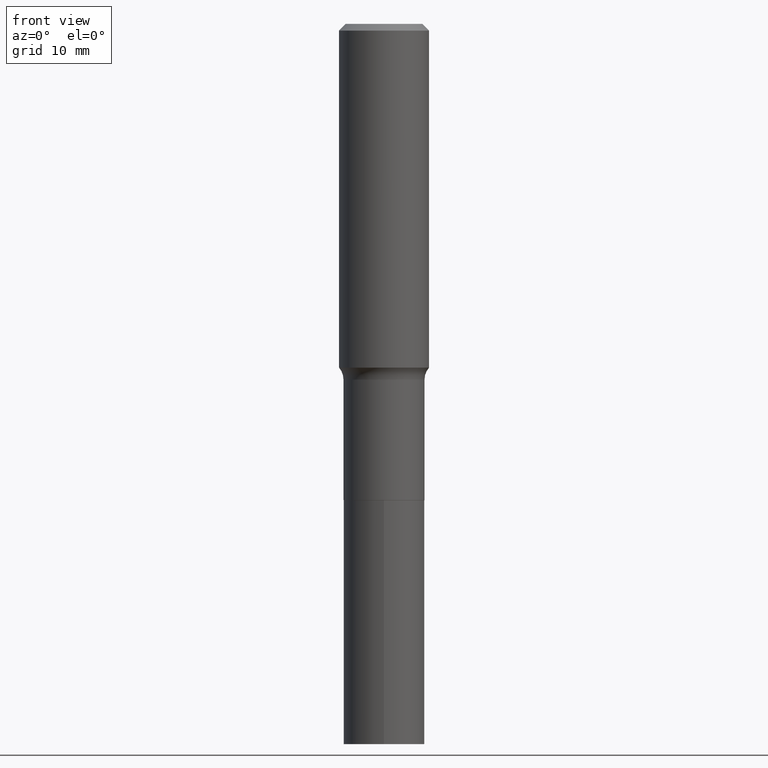
[diagram: clean part render]
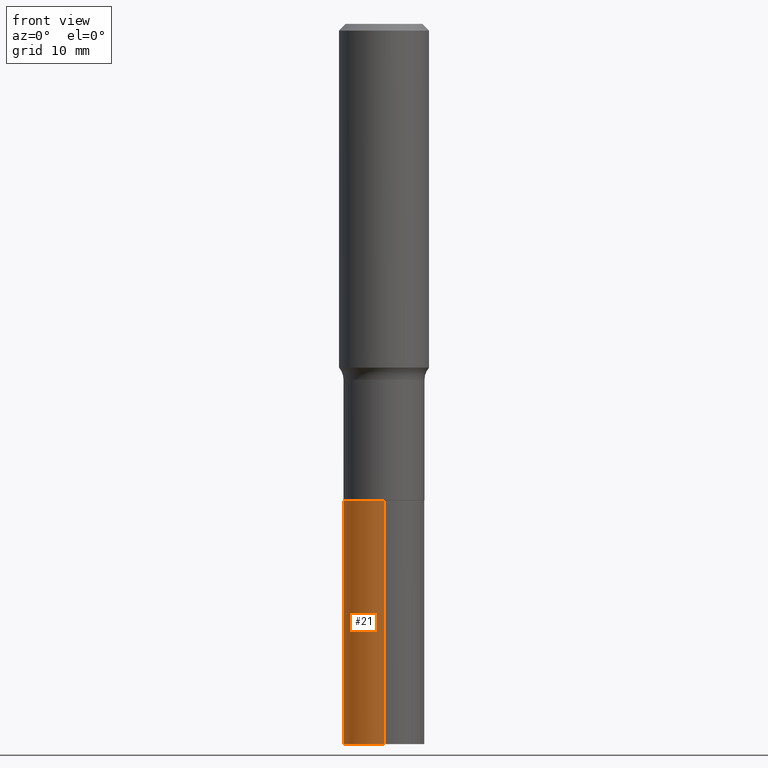
[diagram: same view with one face highlighted and labeled with its STEP entity id]
A machine part, front view. The second image highlights one B-rep face of the part: STEP entity #21.
In plain terms, the highlighted cylindrical surface (partial cylindrical patch) has radius 4.4996 mm, axis along (-0, 0, 1).
Its self-contained STEP definition (entity closure, byte-faithful):
#2 = DIRECTION ( 'NONE',  ( -2.445982101368739272E-29, 3.490746270925279070E-15, 1.000000000000000000 ) ) ;
#21 = ADVANCED_FACE ( 'NONE', ( #316 ), #179, .T. ) ;
#22 = CARTESIAN_POINT ( 'NONE',  ( 7.702796237921611496E-29, -1.099598530735201076E-14, -3.149600000000000843 ) ) ;
#23 = VERTEX_POINT ( 'NONE', #125 ) ;
#27 = AXIS2_PLACEMENT_3D ( 'NONE', #135, #454, #238 ) ;
#32 = EDGE_CURVE ( 'NONE', #459, #183, #84, .T. ) ;
#61 = EDGE_CURVE ( 'NONE', #234, #23, #129, .T. ) ;
#76 = VECTOR ( 'NONE', #184, 39.37007874015748143 ) ;
#84 = CIRCLE ( 'NONE', #309, 0.1771500000000000019 ) ;
#88 = DIRECTION ( 'NONE',  ( -2.445982101368739552E-29, 3.490746270925278675E-15, 1.000000000000000000 ) ) ;
#93 = EDGE_LOOP ( 'NONE', ( #441, #244, #176, #366 ) ) ;
#125 = CARTESIAN_POINT ( 'NONE',  ( -1.237031838352045086E-15, -0.1771500000000110209, -3.149600000000000399 ) ) ;
#129 = CIRCLE ( 'NONE', #196, 0.1771500000000000019 ) ;
#135 = CARTESIAN_POINT ( 'NONE',  ( 5.092933335761166106E-29, -7.271359036274735388E-15, -2.082600000000000229 ) ) ;
#171 = EDGE_CURVE ( 'NONE', #234, #459, #389, .T. ) ;
#176 = ORIENTED_EDGE ( 'NONE', *, *, #301, .T. ) ;
#179 = CYLINDRICAL_SURFACE ( 'NONE', #27, 0.1771500000000000019 ) ;
#180 = DIRECTION ( 'NONE',  ( -2.445982101368739552E-29, 3.490746270925278675E-15, 1.000000000000000000 ) ) ;
#183 = VERTEX_POINT ( 'NONE', #432 ) ;
#184 = DIRECTION ( 'NONE',  ( -2.445982101368739272E-29, 3.490746270925279070E-15, 1.000000000000000000 ) ) ;
#186 = CARTESIAN_POINT ( 'NONE',  ( 1.258726456399068374E-15, 0.1771499999999927299, -2.082600000000000673 ) ) ;
#196 = AXIS2_PLACEMENT_3D ( 'NONE', #22, #180, #460 ) ;
#202 = VECTOR ( 'NONE', #2, 39.37007874015748143 ) ;
#229 = CARTESIAN_POINT ( 'NONE',  ( 1.258726456399081391E-15, 0.1771499999999890107, -3.149600000000001288 ) ) ;
#234 = VERTEX_POINT ( 'NONE', #229 ) ;
#238 = DIRECTION ( 'NONE',  ( -6.982962677686265922E-15, -1.000000000000000000, 3.084220145260246224E-15 ) ) ;
#240 = CARTESIAN_POINT ( 'NONE',  ( 1.258726456399094407E-15, 0.1771499999999927299, -2.082600000000000673 ) ) ;
#244 = ORIENTED_EDGE ( 'NONE', *, *, #61, .T. ) ;
#301 = EDGE_CURVE ( 'NONE', #23, #183, #345, .T. ) ;
#309 = AXIS2_PLACEMENT_3D ( 'NONE', #415, #88, #445 ) ;
#316 = FACE_OUTER_BOUND ( 'NONE', #93, .T. ) ;
#345 = LINE ( 'NONE', #408, #202 ) ;
#366 = ORIENTED_EDGE ( 'NONE', *, *, #32, .F. ) ;
#389 = LINE ( 'NONE', #186, #76 ) ;
#408 = CARTESIAN_POINT ( 'NONE',  ( -1.237031838352071118E-15, -0.1771500000000073016, -2.082599999999999785 ) ) ;
#415 = CARTESIAN_POINT ( 'NONE',  ( 5.092933335761166106E-29, -7.271359036274735388E-15, -2.082600000000000229 ) ) ;
#432 = CARTESIAN_POINT ( 'NONE',  ( -1.237031838352071118E-15, -0.1771500000000073016, -2.082599999999999785 ) ) ;
#441 = ORIENTED_EDGE ( 'NONE', *, *, #171, .F. ) ;
#445 = DIRECTION ( 'NONE',  ( -6.982962677686265922E-15, -1.000000000000000000, 3.084220145260246224E-15 ) ) ;
#454 = DIRECTION ( 'NONE',  ( -2.445982101368739552E-29, 3.490746270925278675E-15, 1.000000000000000000 ) ) ;
#459 = VERTEX_POINT ( 'NONE', #240 ) ;
#460 = DIRECTION ( 'NONE',  ( -6.982962677686265922E-15, -1.000000000000000000, 3.084220145260246224E-15 ) ) ;